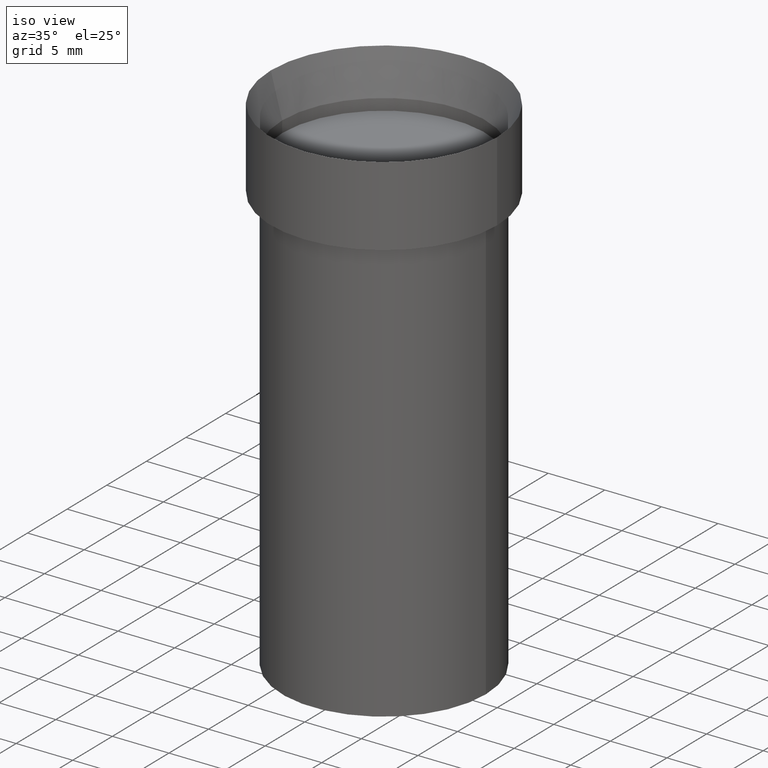
[diagram: clean part render]
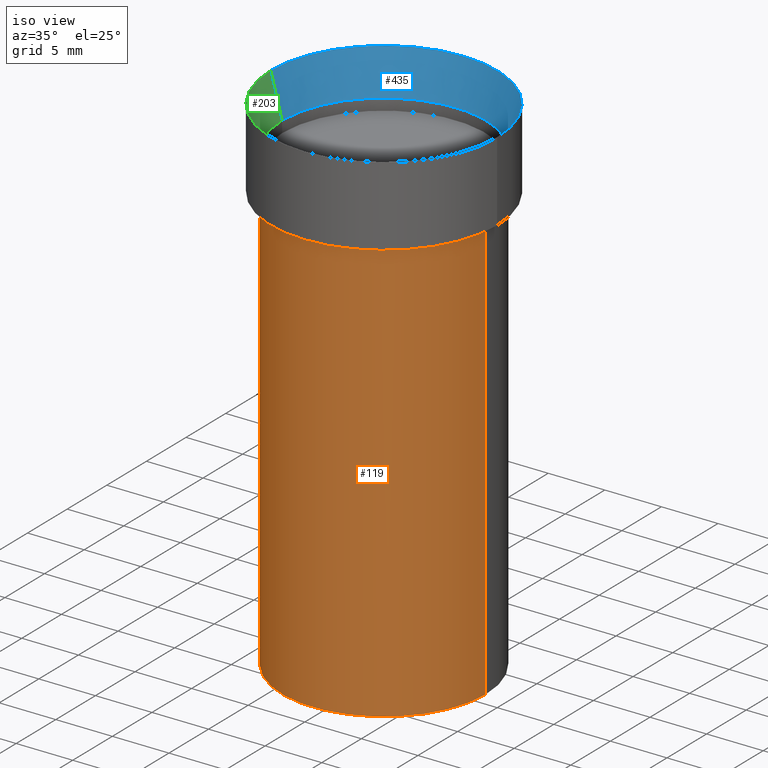
[diagram: same view with three faces highlighted in distinct colors, each labeled with its STEP entity id]
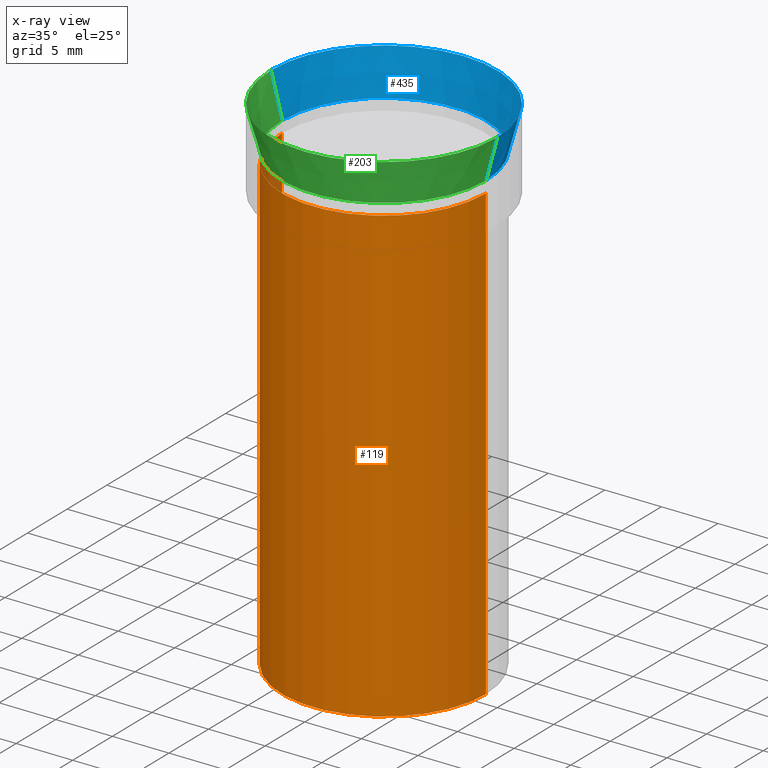
[diagram: x-ray of the same camera — body ghosted, the three highlighted faces saturated]
A machine part, iso view with three faces highlighted in distinct colors.
The next image is the same camera in x-ray (body ghosted, the three faces saturated) — at least one of them is partly hidden behind the body in this view.
Their STEP definitions:

[orange] entity #119 — the highlighted cylindrical surface (partial cylindrical patch) has radius 9.0005 mm, axis along (0, -0, -1).
#2 = CYLINDRICAL_SURFACE ( 'NONE', #98, 0.3543499999999999983 ) ;
#4 = ORIENTED_EDGE ( 'NONE', *, *, #214, .T. ) ;
#15 = AXIS2_PLACEMENT_3D ( 'NONE', #336, #134, #24 ) ;
#24 = DIRECTION ( 'NONE',  ( -1.000000000000000000, 6.982962677686266711E-15, 0.000000000000000000 ) ) ;
#35 = CARTESIAN_POINT ( 'NONE',  ( 0.000000000000000000, 0.000000000000000000, 0.000000000000000000 ) ) ;
#40 = EDGE_CURVE ( 'NONE', #313, #429, #104, .T. ) ;
#70 = DIRECTION ( 'NONE',  ( 2.445468806185136877E-29, -3.491481338843145188E-15, -1.000000000000000000 ) ) ;
#98 = AXIS2_PLACEMENT_3D ( 'NONE', #35, #144, #288 ) ;
#104 = CIRCLE ( 'NONE', #352, 0.3543499999999999983 ) ;
#108 = ORIENTED_EDGE ( 'NONE', *, *, #270, .F. ) ;
#118 = VERTEX_POINT ( 'NONE', #428 ) ;
#119 = ADVANCED_FACE ( 'NONE', ( #179 ), #2, .T. ) ;
#133 = DIRECTION ( 'NONE',  ( -1.000000000000000000, 6.982962677686266711E-15, 0.000000000000000000 ) ) ;
#134 = DIRECTION ( 'NONE',  ( 2.445468806185136597E-29, -3.491481338843145583E-15, -1.000000000000000000 ) ) ;
#137 = VECTOR ( 'NONE', #70, 39.37007874015748143 ) ;
#140 = ORIENTED_EDGE ( 'NONE', *, *, #466, .T. ) ;
#144 = DIRECTION ( 'NONE',  ( 2.445468806185136597E-29, -3.491481338843145583E-15, -1.000000000000000000 ) ) ;
#156 = ORIENTED_EDGE ( 'NONE', *, *, #40, .F. ) ;
#158 = CARTESIAN_POINT ( 'NONE',  ( 3.668203209277704895E-29, -5.237222008264718177E-15, -1.500000000000000222 ) ) ;
#172 = CARTESIAN_POINT ( 'NONE',  ( -0.3543499999999999983, -2.762809183426589877E-15, -1.500000000000000222 ) ) ;
#179 = FACE_OUTER_BOUND ( 'NONE', #297, .T. ) ;
#185 = DIRECTION ( 'NONE',  ( 2.445468806185136877E-29, -3.491481338843145188E-15, -1.000000000000000000 ) ) ;
#214 = EDGE_CURVE ( 'NONE', #118, #405, #415, .T. ) ;
#270 = EDGE_CURVE ( 'NONE', #118, #313, #371, .T. ) ;
#288 = DIRECTION ( 'NONE',  ( -1.000000000000000000, 6.982962677686266711E-15, -4.876176775795935793E-29 ) ) ;
#297 = EDGE_LOOP ( 'NONE', ( #108, #4, #140, #156 ) ) ;
#299 = CARTESIAN_POINT ( 'NONE',  ( 0.3543499999999999983, -4.919047067569968280E-15, -1.500000000000000222 ) ) ;
#300 = LINE ( 'NONE', #448, #137 ) ;
#313 = VERTEX_POINT ( 'NONE', #299 ) ;
#322 = VECTOR ( 'NONE', #185, 39.37007874015748143 ) ;
#336 = CARTESIAN_POINT ( 'NONE',  ( -1.829210667026481802E-30, 2.611628041454672384E-16, 0.07479999999999997762 ) ) ;
#343 = CARTESIAN_POINT ( 'NONE',  ( 0.3543499999999999983, -2.431017465510342392E-15, 1.712721831774753992E-29 ) ) ;
#349 = DIRECTION ( 'NONE',  ( 2.445468806185136597E-29, -3.491481338843145583E-15, -1.000000000000000000 ) ) ;
#350 = CARTESIAN_POINT ( 'NONE',  ( -0.3543499999999999983, 2.735575628983595883E-15, 0.07479999999999997762 ) ) ;
#352 = AXIS2_PLACEMENT_3D ( 'NONE', #158, #349, #133 ) ;
#371 = LINE ( 'NONE', #343, #322 ) ;
#405 = VERTEX_POINT ( 'NONE', #350 ) ;
#415 = CIRCLE ( 'NONE', #15, 0.3543499999999999983 ) ;
#428 = CARTESIAN_POINT ( 'NONE',  ( 0.3543499999999999983, -4.919047067569968280E-15, 0.07479999999999997762 ) ) ;
#429 = VERTEX_POINT ( 'NONE', #172 ) ;
#448 = CARTESIAN_POINT ( 'NONE',  ( -0.3543499999999999983, 2.474412824838128694E-15, -1.727873240503289749E-29 ) ) ;
#466 = EDGE_CURVE ( 'NONE', #405, #429, #300, .T. ) ;

[blue] entity #435 — the highlighted conical surface has half-angle 15 deg.
#7 = AXIS2_PLACEMENT_3D ( 'NONE', #139, #283, #177 ) ;
#25 = CARTESIAN_POINT ( 'NONE',  ( -0.3543499999999999428, 3.315500661029671558E-15, 0.1150000000000000189 ) ) ;
#54 = ORIENTED_EDGE ( 'NONE', *, *, #286, .T. ) ;
#62 = EDGE_CURVE ( 'NONE', #361, #89, #387, .T. ) ;
#67 = DIRECTION ( 'NONE',  ( 0.2588190451025211836, 1.565188264969622559E-15, 0.9659258262890679791 ) ) ;
#72 = VECTOR ( 'NONE', #272, 39.37007874015748854 ) ;
#73 = EDGE_CURVE ( 'NONE', #341, #109, #359, .T. ) ;
#76 = DIRECTION ( 'NONE',  ( -2.445468806185136597E-29, 3.491481338843145583E-15, 1.000000000000000000 ) ) ;
#89 = VERTEX_POINT ( 'NONE', #116 ) ;
#100 = CARTESIAN_POINT ( 'NONE',  ( -0.3936999999999999389, 3.711672783926467705E-15, 0.2618561992778351555 ) ) ;
#102 = EDGE_CURVE ( 'NONE', #89, #109, #206, .T. ) ;
#109 = VERTEX_POINT ( 'NONE', #138 ) ;
#113 = CARTESIAN_POINT ( 'NONE',  ( 0.3936999999999999389, -1.834926372966129509E-15, 0.2618561992778351555 ) ) ;
#116 = CARTESIAN_POINT ( 'NONE',  ( -0.3936999999999999389, 3.711672783926467705E-15, 0.2618561992778351555 ) ) ;
#129 = CONICAL_SURFACE ( 'NONE', #354, 0.3936999999999999389, 0.2617993877991499074 ) ;
#138 = CARTESIAN_POINT ( 'NONE',  ( 0.3936999999999999389, -1.834926372966129509E-15, 0.2618561992778351555 ) ) ;
#139 = CARTESIAN_POINT ( 'NONE',  ( -6.403611670401447787E-30, 9.142660332389533129E-16, 0.2618561992778351555 ) ) ;
#143 = CARTESIAN_POINT ( 'NONE',  ( 0.3543499999999999428, -1.953909421918648105E-15, 0.1150000000000000189 ) ) ;
#147 = VECTOR ( 'NONE', #67, 39.37007874015748854 ) ;
#177 = DIRECTION ( 'NONE',  ( -1.000000000000000000, 6.982962677686266711E-15, 0.000000000000000000 ) ) ;
#190 = ORIENTED_EDGE ( 'NONE', *, *, #73, .T. ) ;
#206 = CIRCLE ( 'NONE', #7, 0.3936999999999999389 ) ;
#210 = EDGE_LOOP ( 'NONE', ( #417, #54, #190, #230 ) ) ;
#230 = ORIENTED_EDGE ( 'NONE', *, *, #102, .F. ) ;
#253 = FACE_OUTER_BOUND ( 'NONE', #210, .T. ) ;
#257 = AXIS2_PLACEMENT_3D ( 'NONE', #447, #266, #345 ) ;
#266 = DIRECTION ( 'NONE',  ( 2.445468806185136597E-29, -3.491481338843145583E-15, -1.000000000000000000 ) ) ;
#272 = DIRECTION ( 'NONE',  ( -0.2588190451025211836, 5.211531920934547886E-15, 0.9659258262890679791 ) ) ;
#283 = DIRECTION ( 'NONE',  ( 2.445468806185136597E-29, -3.491481338843145583E-15, -1.000000000000000000 ) ) ;
#286 = EDGE_CURVE ( 'NONE', #361, #341, #411, .T. ) ;
#341 = VERTEX_POINT ( 'NONE', #143 ) ;
#345 = DIRECTION ( 'NONE',  ( -1.000000000000000000, 6.982962677686266711E-15, 0.000000000000000000 ) ) ;
#354 = AXIS2_PLACEMENT_3D ( 'NONE', #362, #76, #395 ) ;
#359 = LINE ( 'NONE', #113, #147 ) ;
#361 = VERTEX_POINT ( 'NONE', #25 ) ;
#362 = CARTESIAN_POINT ( 'NONE',  ( -6.403611670401447787E-30, 9.142660332389533129E-16, 0.2618561992778351555 ) ) ;
#387 = LINE ( 'NONE', #100, #72 ) ;
#395 = DIRECTION ( 'NONE',  ( 1.000000000000000000, -6.982962677686266711E-15, 0.000000000000000000 ) ) ;
#411 = CIRCLE ( 'NONE', #257, 0.3543499999999999428 ) ;
#417 = ORIENTED_EDGE ( 'NONE', *, *, #62, .F. ) ;
#435 = ADVANCED_FACE ( 'NONE', ( #253 ), #129, .F. ) ;
#447 = CARTESIAN_POINT ( 'NONE',  ( -2.812289127112907395E-30, 4.015203539669618446E-16, 0.1150000000000000189 ) ) ;

[green] entity #203 — the highlighted conical surface has half-angle 15 deg.
#1 = ORIENTED_EDGE ( 'NONE', *, *, #62, .T. ) ;
#18 = DIRECTION ( 'NONE',  ( 2.445468806185136597E-29, -3.491481338843145583E-15, -1.000000000000000000 ) ) ;
#25 = CARTESIAN_POINT ( 'NONE',  ( -0.3543499999999999428, 3.315500661029671558E-15, 0.1150000000000000189 ) ) ;
#47 = DIRECTION ( 'NONE',  ( -1.000000000000000000, 6.982962677686266711E-15, 0.000000000000000000 ) ) ;
#62 = EDGE_CURVE ( 'NONE', #361, #89, #387, .T. ) ;
#67 = DIRECTION ( 'NONE',  ( 0.2588190451025211836, 1.565188264969622559E-15, 0.9659258262890679791 ) ) ;
#71 = FACE_OUTER_BOUND ( 'NONE', #242, .T. ) ;
#72 = VECTOR ( 'NONE', #272, 39.37007874015748854 ) ;
#73 = EDGE_CURVE ( 'NONE', #341, #109, #359, .T. ) ;
#89 = VERTEX_POINT ( 'NONE', #116 ) ;
#91 = CARTESIAN_POINT ( 'NONE',  ( -6.403611670401447787E-30, 9.142660332389533129E-16, 0.2618561992778351555 ) ) ;
#100 = CARTESIAN_POINT ( 'NONE',  ( -0.3936999999999999389, 3.711672783926467705E-15, 0.2618561992778351555 ) ) ;
#109 = VERTEX_POINT ( 'NONE', #138 ) ;
#113 = CARTESIAN_POINT ( 'NONE',  ( 0.3936999999999999389, -1.834926372966129509E-15, 0.2618561992778351555 ) ) ;
#116 = CARTESIAN_POINT ( 'NONE',  ( -0.3936999999999999389, 3.711672783926467705E-15, 0.2618561992778351555 ) ) ;
#138 = CARTESIAN_POINT ( 'NONE',  ( 0.3936999999999999389, -1.834926372966129509E-15, 0.2618561992778351555 ) ) ;
#143 = CARTESIAN_POINT ( 'NONE',  ( 0.3543499999999999428, -1.953909421918648105E-15, 0.1150000000000000189 ) ) ;
#147 = VECTOR ( 'NONE', #67, 39.37007874015748854 ) ;
#167 = DIRECTION ( 'NONE',  ( -1.000000000000000000, 6.982962677686266711E-15, 0.000000000000000000 ) ) ;
#203 = ADVANCED_FACE ( 'NONE', ( #71 ), #222, .F. ) ;
#213 = CARTESIAN_POINT ( 'NONE',  ( -6.403611670401447787E-30, 9.142660332389533129E-16, 0.2618561992778351555 ) ) ;
#216 = DIRECTION ( 'NONE',  ( 1.000000000000000000, -6.982962677686266711E-15, 0.000000000000000000 ) ) ;
#222 = CONICAL_SURFACE ( 'NONE', #400, 0.3936999999999999389, 0.2617993877991499074 ) ;
#242 = EDGE_LOOP ( 'NONE', ( #276, #1, #331, #377 ) ) ;
#250 = CARTESIAN_POINT ( 'NONE',  ( -2.812289127112907395E-30, 4.015203539669618446E-16, 0.1150000000000000189 ) ) ;
#252 = EDGE_CURVE ( 'NONE', #109, #89, #303, .T. ) ;
#272 = DIRECTION ( 'NONE',  ( -0.2588190451025211836, 5.211531920934547886E-15, 0.9659258262890679791 ) ) ;
#276 = ORIENTED_EDGE ( 'NONE', *, *, #440, .T. ) ;
#303 = CIRCLE ( 'NONE', #401, 0.3936999999999999389 ) ;
#324 = DIRECTION ( 'NONE',  ( -2.445468806185136597E-29, 3.491481338843145583E-15, 1.000000000000000000 ) ) ;
#329 = CIRCLE ( 'NONE', #335, 0.3543499999999999428 ) ;
#330 = DIRECTION ( 'NONE',  ( 2.445468806185136597E-29, -3.491481338843145583E-15, -1.000000000000000000 ) ) ;
#331 = ORIENTED_EDGE ( 'NONE', *, *, #252, .F. ) ;
#335 = AXIS2_PLACEMENT_3D ( 'NONE', #250, #330, #47 ) ;
#341 = VERTEX_POINT ( 'NONE', #143 ) ;
#359 = LINE ( 'NONE', #113, #147 ) ;
#361 = VERTEX_POINT ( 'NONE', #25 ) ;
#377 = ORIENTED_EDGE ( 'NONE', *, *, #73, .F. ) ;
#387 = LINE ( 'NONE', #100, #72 ) ;
#400 = AXIS2_PLACEMENT_3D ( 'NONE', #213, #324, #216 ) ;
#401 = AXIS2_PLACEMENT_3D ( 'NONE', #91, #18, #167 ) ;
#440 = EDGE_CURVE ( 'NONE', #341, #361, #329, .T. ) ;